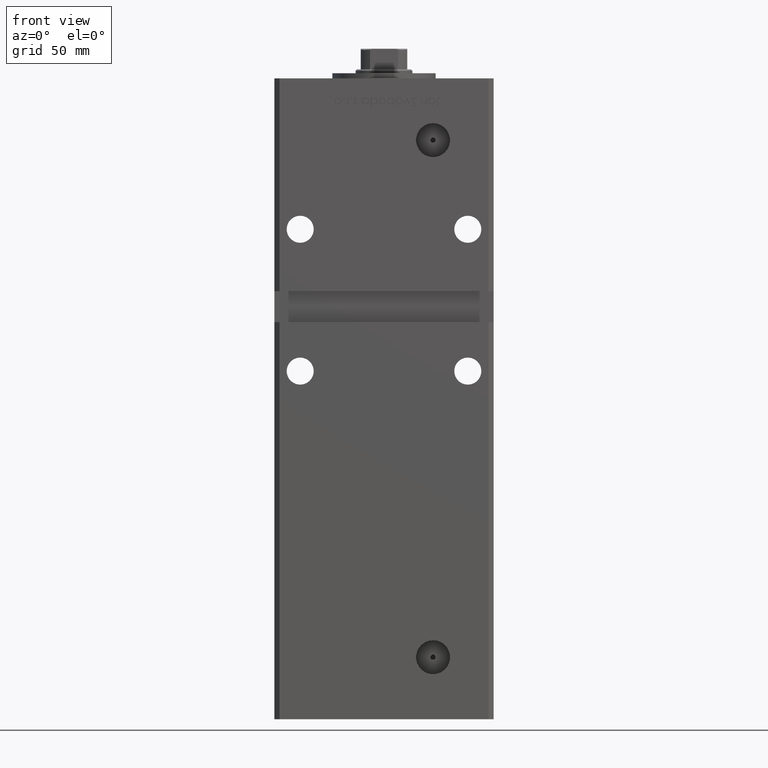
[diagram: clean part render]
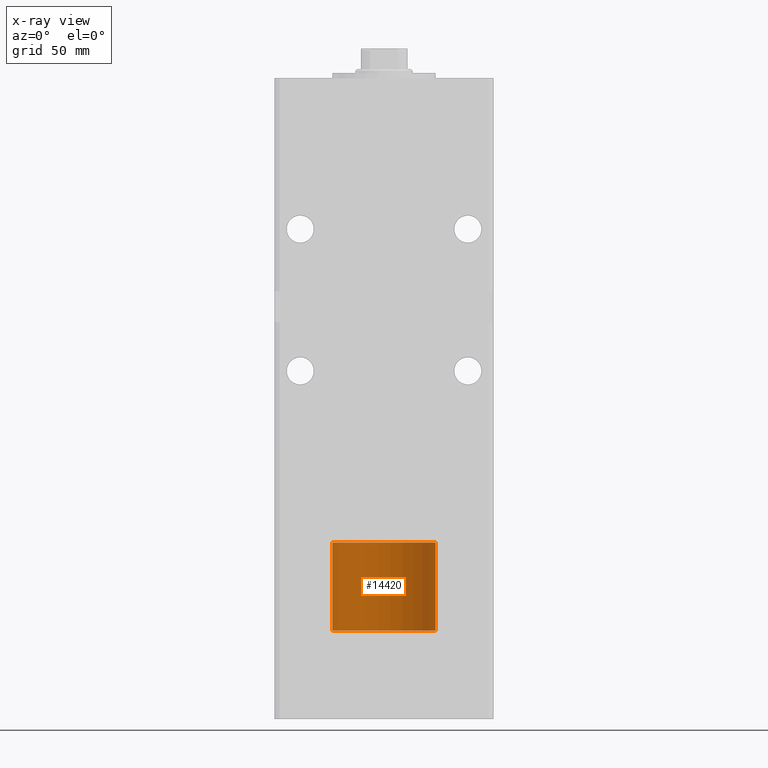
[diagram: x-ray — body ghosted, one internal face saturated and labeled with its STEP entity id]
A machine part, front view, then the same camera in x-ray: the body is ghosted and one INTERNAL B-rep face — a face not visible from any outside direction — is saturated and labeled: STEP entity #14420.
In plain terms, the highlighted cylindrical surface (partial cylindrical patch) has radius 20 mm, axis along (-0, -0, -1).
Its self-contained STEP definition (entity closure, byte-faithful):
#244 = CARTESIAN_POINT ( 'NONE',  ( 20.00000000000000000, 2.449293598294706513E-15, 34.25000000000000000 ) ) ;
#3535 = EDGE_LOOP ( 'NONE', ( #9218, #19672, #13127, #43430 ) ) ;
#4482 = CIRCLE ( 'NONE', #9626, 20.00000000000000000 ) ;
#5182 = VECTOR ( 'NONE', #33406, 1000.000000000000000 ) ;
#6605 = DIRECTION ( 'NONE',  ( 0.000000000000000000, 0.000000000000000000, 1.000000000000000000 ) ) ;
#8043 = VERTEX_POINT ( 'NONE', #47492 ) ;
#8064 = DIRECTION ( 'NONE',  ( 0.000000000000000000, 0.000000000000000000, 1.000000000000000000 ) ) ;
#9218 = ORIENTED_EDGE ( 'NONE', *, *, #25421, .F. ) ;
#9626 = AXIS2_PLACEMENT_3D ( 'NONE', #31075, #6605, #35380 ) ;
#11256 = VECTOR ( 'NONE', #23150, 1000.000000000000000 ) ;
#12854 = CARTESIAN_POINT ( 'NONE',  ( 0.000000000000000000, 0.000000000000000000, 34.25000000000000000 ) ) ;
#13000 = VERTEX_POINT ( 'NONE', #22846 ) ;
#13127 = ORIENTED_EDGE ( 'NONE', *, *, #34365, .T. ) ;
#14420 = ADVANCED_FACE ( 'NONE', ( #16612 ), #49990, .T. ) ;
#16612 = FACE_OUTER_BOUND ( 'NONE', #3535, .T. ) ;
#19672 = ORIENTED_EDGE ( 'NONE', *, *, #26010, .T. ) ;
#19747 = VERTEX_POINT ( 'NONE', #42478 ) ;
#21016 = CARTESIAN_POINT ( 'NONE',  ( 20.00000000000000000, 2.449293598294706513E-15, 34.25000000000000000 ) ) ;
#21462 = DIRECTION ( 'NONE',  ( -1.000000000000000000, 0.000000000000000000, 0.000000000000000000 ) ) ;
#22846 = CARTESIAN_POINT ( 'NONE',  ( -20.00000000000000000, 0.000000000000000000, 34.25000000000000000 ) ) ;
#23150 = DIRECTION ( 'NONE',  ( -0.000000000000000000, -0.000000000000000000, -1.000000000000000000 ) ) ;
#25421 = EDGE_CURVE ( 'NONE', #38944, #13000, #36968, .T. ) ;
#26010 = EDGE_CURVE ( 'NONE', #38944, #8043, #41455, .T. ) ;
#27001 = EDGE_CURVE ( 'NONE', #13000, #19747, #51678, .T. ) ;
#31075 = CARTESIAN_POINT ( 'NONE',  ( 0.000000000000000000, 0.000000000000000000, 0.000000000000000000 ) ) ;
#33406 = DIRECTION ( 'NONE',  ( -0.000000000000000000, -0.000000000000000000, -1.000000000000000000 ) ) ;
#34365 = EDGE_CURVE ( 'NONE', #8043, #19747, #4482, .T. ) ;
#35380 = DIRECTION ( 'NONE',  ( 1.000000000000000000, 0.000000000000000000, 0.000000000000000000 ) ) ;
#36968 = CIRCLE ( 'NONE', #49876, 20.00000000000000000 ) ;
#38416 = AXIS2_PLACEMENT_3D ( 'NONE', #12854, #45395, #21462 ) ;
#38944 = VERTEX_POINT ( 'NONE', #244 ) ;
#40345 = CARTESIAN_POINT ( 'NONE',  ( 0.000000000000000000, 0.000000000000000000, 34.25000000000000000 ) ) ;
#41455 = LINE ( 'NONE', #21016, #5182 ) ;
#42478 = CARTESIAN_POINT ( 'NONE',  ( -20.00000000000000000, 0.000000000000000000, 0.000000000000000000 ) ) ;
#43430 = ORIENTED_EDGE ( 'NONE', *, *, #27001, .F. ) ;
#43599 = CARTESIAN_POINT ( 'NONE',  ( -20.00000000000000000, 0.000000000000000000, 34.25000000000000000 ) ) ;
#45395 = DIRECTION ( 'NONE',  ( -0.000000000000000000, -0.000000000000000000, -1.000000000000000000 ) ) ;
#47492 = CARTESIAN_POINT ( 'NONE',  ( 20.00000000000000000, 2.449293598294706513E-15, 0.000000000000000000 ) ) ;
#49876 = AXIS2_PLACEMENT_3D ( 'NONE', #40345, #8064, #52725 ) ;
#49990 = CYLINDRICAL_SURFACE ( 'NONE', #38416, 20.00000000000000000 ) ;
#51678 = LINE ( 'NONE', #43599, #11256 ) ;
#52725 = DIRECTION ( 'NONE',  ( 1.000000000000000000, 0.000000000000000000, 0.000000000000000000 ) ) ;